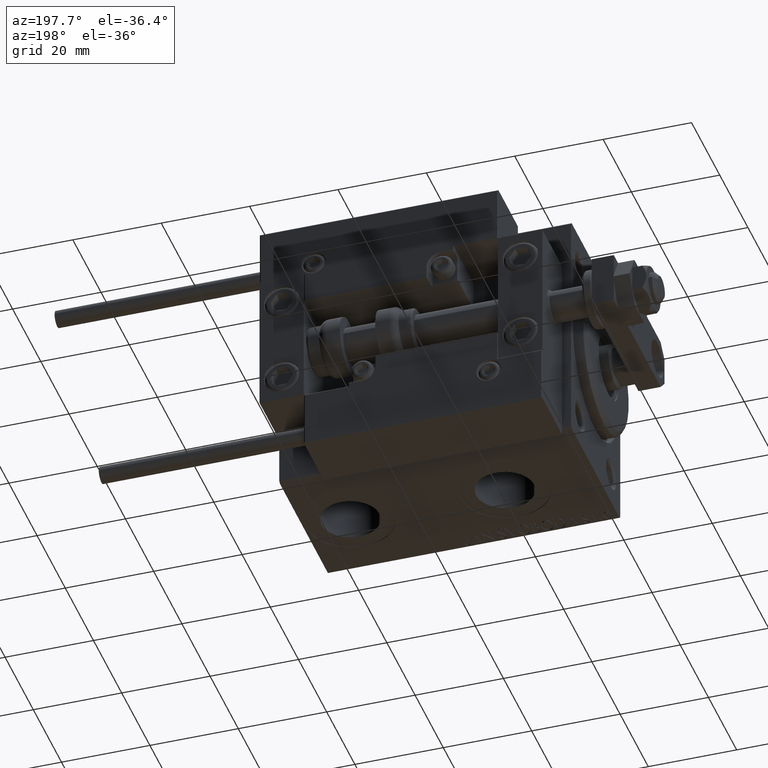
[diagram: clean part render]
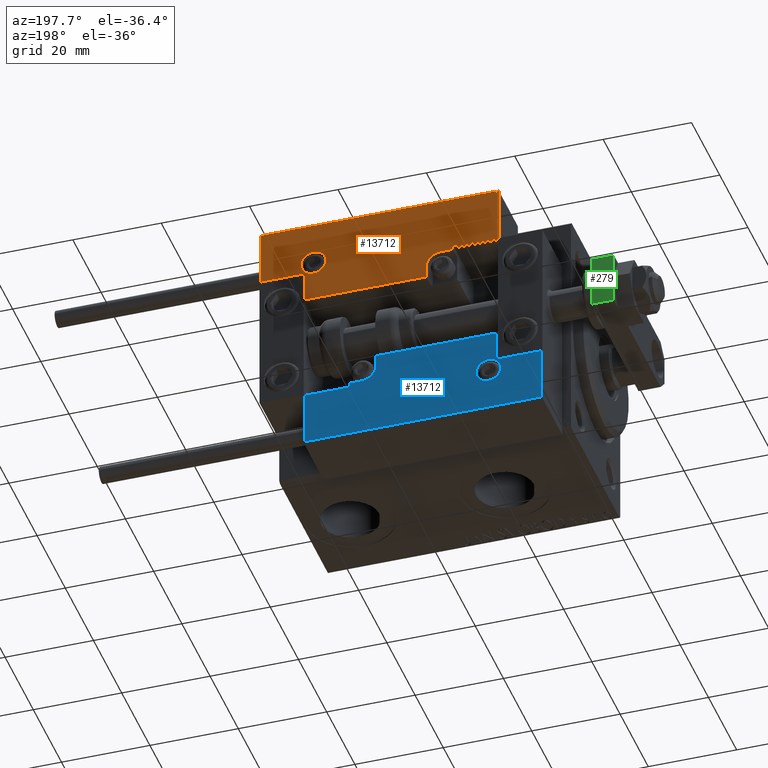
[diagram: same view with three faces highlighted in distinct colors, each labeled with its STEP entity id]
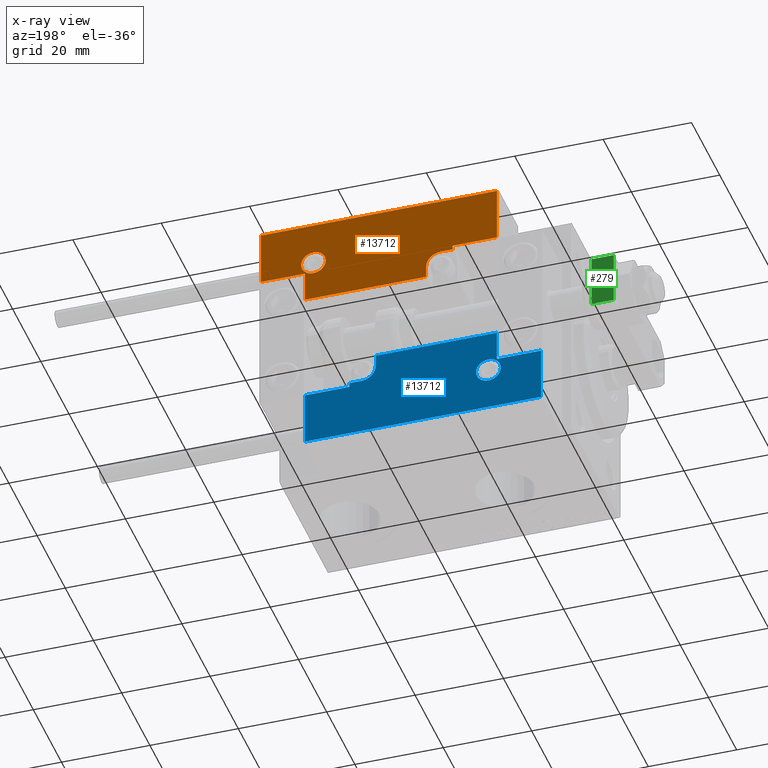
[diagram: x-ray of the same camera — body ghosted, the three highlighted faces saturated]
A machine part, auxiliary view with three faces highlighted in distinct colors.
The next image is the same camera in x-ray (body ghosted, the three faces saturated) — at least one of them is partly hidden behind the body in this view.
Their STEP definitions:

[orange] entity #13712 — the highlighted planar face has unit normal (-0, 1, -0).
#22 = LINE ( 'NONE', #547, #45809 ) ;
#547 = CARTESIAN_POINT ( 'NONE',  ( 16.69999999999999929, 7.000000000000009770, 14.00000000000000000 ) ) ;
#862 = DIRECTION ( 'NONE',  ( 0.000000000000000000, -1.000000000000000000, 0.000000000000000000 ) ) ;
#1404 = CARTESIAN_POINT ( 'NONE',  ( 13.99999999999999822, 3.000000000000002665, 14.00000000000000000 ) ) ;
#1955 = VERTEX_POINT ( 'NONE', #6194 ) ;
#2488 = CARTESIAN_POINT ( 'NONE',  ( 10.69999999999999929, 3.000000000000003109, 14.00000000000000000 ) ) ;
#2650 = EDGE_CURVE ( 'NONE', #49563, #13708, #47462, .T. ) ;
#2847 = EDGE_CURVE ( 'NONE', #11954, #24533, #2974, .T. ) ;
#2974 = CIRCLE ( 'NONE', #13187, 2.800000000000000266 ) ;
#3666 = CARTESIAN_POINT ( 'NONE',  ( 16.69999999999999929, 6.300000000000003375, 14.00000000000000000 ) ) ;
#4376 = ORIENTED_EDGE ( 'NONE', *, *, #14199, .T. ) ;
#4877 = DIRECTION ( 'NONE',  ( 1.000000000000000000, 0.000000000000000000, 0.000000000000000000 ) ) ;
#6194 = CARTESIAN_POINT ( 'NONE',  ( 16.69999999999999929, 7.300000000000009592, 14.00000000000000000 ) ) ;
#6582 = CARTESIAN_POINT ( 'NONE',  ( 10.69999999999999929, 3.000000000000003109, 14.00000000000000000 ) ) ;
#7133 = FACE_BOUND ( 'NONE', #41060, .T. ) ;
#7647 = DIRECTION ( 'NONE',  ( 1.000000000000000000, 0.000000000000000000, 0.000000000000000000 ) ) ;
#8162 = CARTESIAN_POINT ( 'NONE',  ( -26.69999999999993534, 19.70000000000002061, 14.00000000000000000 ) ) ;
#8483 = DIRECTION ( 'NONE',  ( 0.000000000000000000, -0.000000000000000000, -1.000000000000000000 ) ) ;
#10380 = CARTESIAN_POINT ( 'NONE',  ( -26.69999999999994600, 7.000000000000005329, 14.00000000000000000 ) ) ;
#10434 = VERTEX_POINT ( 'NONE', #44101 ) ;
#10633 = VECTOR ( 'NONE', #38465, 1000.000000000000000 ) ;
#10973 = CIRCLE ( 'NONE', #32155, 3.299999999999997158 ) ;
#11466 = DIRECTION ( 'NONE',  ( 1.000000000000000000, -0.000000000000000000, 0.000000000000000000 ) ) ;
#11628 = DIRECTION ( 'NONE',  ( -1.000000000000000000, 6.424901762877063495E-17, -0.000000000000000000 ) ) ;
#11700 = ORIENTED_EDGE ( 'NONE', *, *, #2650, .T. ) ;
#11727 = CIRCLE ( 'NONE', #23603, 2.800000000000000266 ) ;
#11936 = CARTESIAN_POINT ( 'NONE',  ( -16.69999999999999218, 7.300000000000003375, 14.00000000000000000 ) ) ;
#11954 = VERTEX_POINT ( 'NONE', #20620 ) ;
#12237 = DIRECTION ( 'NONE',  ( 9.912705577010318647E-16, 1.000000000000000000, 0.000000000000000000 ) ) ;
#12462 = CARTESIAN_POINT ( 'NONE',  ( -14.79999999999994920, 9.800000000000004263, 14.00000000000000000 ) ) ;
#12673 = EDGE_CURVE ( 'NONE', #24533, #11954, #11727, .T. ) ;
#13106 = DIRECTION ( 'NONE',  ( 0.000000000000000000, -0.000000000000000000, -1.000000000000000000 ) ) ;
#13119 = ORIENTED_EDGE ( 'NONE', *, *, #29435, .T. ) ;
#13173 = VECTOR ( 'NONE', #11466, 1000.000000000000000 ) ;
#13187 = AXIS2_PLACEMENT_3D ( 'NONE', #30360, #30630, #34099 ) ;
#13346 = LINE ( 'NONE', #29266, #49203 ) ;
#13708 = VERTEX_POINT ( 'NONE', #3666 ) ;
#13712 = ADVANCED_FACE ( 'NONE', ( #7133, #19346 ), #31552, .T. ) ;
#14199 = EDGE_CURVE ( 'NONE', #15102, #16950, #35418, .T. ) ;
#14789 = VERTEX_POINT ( 'NONE', #26477 ) ;
#15102 = VERTEX_POINT ( 'NONE', #39418 ) ;
#15374 = EDGE_CURVE ( 'NONE', #16950, #49563, #10973, .T. ) ;
#15875 = DIRECTION ( 'NONE',  ( -0.000000000000000000, 0.000000000000000000, 1.000000000000000000 ) ) ;
#16282 = CARTESIAN_POINT ( 'NONE',  ( 13.99999999999999822, 6.300000000000001599, 14.00000000000000000 ) ) ;
#16826 = VERTEX_POINT ( 'NONE', #11936 ) ;
#16950 = VERTEX_POINT ( 'NONE', #6582 ) ;
#19346 = FACE_OUTER_BOUND ( 'NONE', #20336, .T. ) ;
#19527 = VERTEX_POINT ( 'NONE', #34659 ) ;
#20336 = EDGE_LOOP ( 'NONE', ( #44208, #13119, #4376, #20767, #11700, #51398, #21435, #48749, #44885, #47358, #22649 ) ) ;
#20620 = CARTESIAN_POINT ( 'NONE',  ( -11.99999999999994849, 9.800000000000004263, 14.00000000000000000 ) ) ;
#20767 = ORIENTED_EDGE ( 'NONE', *, *, #15374, .T. ) ;
#20957 = EDGE_CURVE ( 'NONE', #16826, #49275, #13346, .T. ) ;
#21201 = VECTOR ( 'NONE', #11628, 1000.000000000000000 ) ;
#21435 = ORIENTED_EDGE ( 'NONE', *, *, #40772, .T. ) ;
#21695 = VECTOR ( 'NONE', #26578, 1000.000000000000000 ) ;
#22649 = ORIENTED_EDGE ( 'NONE', *, *, #48621, .T. ) ;
#23519 = CARTESIAN_POINT ( 'NONE',  ( -16.99999999999999289, 7.300000000000003375, 14.00000000000000000 ) ) ;
#23603 = AXIS2_PLACEMENT_3D ( 'NONE', #12462, #8483, #40874 ) ;
#23724 = DIRECTION ( 'NONE',  ( -0.000000000000000000, 1.000000000000000000, -0.000000000000000000 ) ) ;
#24533 = VERTEX_POINT ( 'NONE', #40020 ) ;
#24813 = LINE ( 'NONE', #49496, #25437 ) ;
#25437 = VECTOR ( 'NONE', #33568, 1000.000000000000000 ) ;
#25609 = CARTESIAN_POINT ( 'NONE',  ( -16.69999999999999218, 0.3000000000000032085, 14.00000000000000000 ) ) ;
#25846 = ORIENTED_EDGE ( 'NONE', *, *, #12673, .T. ) ;
#26313 = LINE ( 'NONE', #10380, #21695 ) ;
#26477 = CARTESIAN_POINT ( 'NONE',  ( 26.70000000000006324, 19.70000000000001705, 14.00000000000000000 ) ) ;
#26578 = DIRECTION ( 'NONE',  ( -8.006416042969869188E-16, -1.000000000000000000, 0.000000000000000000 ) ) ;
#27050 = VECTOR ( 'NONE', #23724, 1000.000000000000000 ) ;
#28909 = EDGE_CURVE ( 'NONE', #10434, #14789, #44043, .T. ) ;
#29266 = CARTESIAN_POINT ( 'NONE',  ( -16.69999999999999218, 3.252606517456513302E-15, 14.00000000000000000 ) ) ;
#29435 = EDGE_CURVE ( 'NONE', #49275, #15102, #31645, .T. ) ;
#30360 = CARTESIAN_POINT ( 'NONE',  ( -14.79999999999994920, 9.800000000000004263, 14.00000000000000000 ) ) ;
#30630 = DIRECTION ( 'NONE',  ( 0.000000000000000000, -0.000000000000000000, -1.000000000000000000 ) ) ;
#30758 = LINE ( 'NONE', #39512, #21201 ) ;
#31552 = PLANE ( 'NONE',  #38071 ) ;
#31645 = LINE ( 'NONE', #47827, #13173 ) ;
#31672 = EDGE_CURVE ( 'NONE', #36691, #19527, #26313, .T. ) ;
#31804 = CARTESIAN_POINT ( 'NONE',  ( 0.000000000000000000, 0.000000000000000000, 14.00000000000000000 ) ) ;
#32155 = AXIS2_PLACEMENT_3D ( 'NONE', #1404, #13106, #4877 ) ;
#33568 = DIRECTION ( 'NONE',  ( 1.000000000000000000, -1.734723475976796001E-16, 0.000000000000000000 ) ) ;
#34099 = DIRECTION ( 'NONE',  ( 1.000000000000000000, 0.000000000000000000, 0.000000000000000000 ) ) ;
#34217 = CARTESIAN_POINT ( 'NONE',  ( 17.00000000000000000, 6.300000000000003375, 14.00000000000000000 ) ) ;
#34659 = CARTESIAN_POINT ( 'NONE',  ( -26.69999999999994600, 7.300000000000005151, 14.00000000000000000 ) ) ;
#35418 = LINE ( 'NONE', #2488, #27050 ) ;
#36691 = VERTEX_POINT ( 'NONE', #8162 ) ;
#38071 = AXIS2_PLACEMENT_3D ( 'NONE', #31804, #15875, #7647 ) ;
#38465 = DIRECTION ( 'NONE',  ( 1.000000000000000000, 5.782411586589357639E-16, -0.000000000000000000 ) ) ;
#39027 = DIRECTION ( 'NONE',  ( 0.000000000000000000, 1.000000000000000000, -0.000000000000000000 ) ) ;
#39418 = CARTESIAN_POINT ( 'NONE',  ( 10.69999999999999929, 0.3000000000000032085, 14.00000000000000000 ) ) ;
#39512 = CARTESIAN_POINT ( 'NONE',  ( -26.99999999999993605, 19.70000000000002061, 14.00000000000000000 ) ) ;
#40020 = CARTESIAN_POINT ( 'NONE',  ( -17.59999999999994813, 9.800000000000004263, 14.00000000000000000 ) ) ;
#40772 = EDGE_CURVE ( 'NONE', #1955, #10434, #24813, .T. ) ;
#40874 = DIRECTION ( 'NONE',  ( 1.000000000000000000, 0.000000000000000000, 0.000000000000000000 ) ) ;
#40895 = VECTOR ( 'NONE', #47679, 1000.000000000000000 ) ;
#41060 = EDGE_LOOP ( 'NONE', ( #42598, #25846 ) ) ;
#41130 = EDGE_CURVE ( 'NONE', #14789, #36691, #30758, .T. ) ;
#42598 = ORIENTED_EDGE ( 'NONE', *, *, #2847, .T. ) ;
#44043 = LINE ( 'NONE', #51227, #47990 ) ;
#44101 = CARTESIAN_POINT ( 'NONE',  ( 26.70000000000006324, 7.300000000000007816, 14.00000000000000000 ) ) ;
#44208 = ORIENTED_EDGE ( 'NONE', *, *, #20957, .T. ) ;
#44224 = LINE ( 'NONE', #23519, #40895 ) ;
#44885 = ORIENTED_EDGE ( 'NONE', *, *, #41130, .T. ) ;
#45809 = VECTOR ( 'NONE', #12237, 1000.000000000000000 ) ;
#47358 = ORIENTED_EDGE ( 'NONE', *, *, #31672, .T. ) ;
#47462 = LINE ( 'NONE', #34217, #10633 ) ;
#47679 = DIRECTION ( 'NONE',  ( 1.000000000000000000, -1.734723475976815230E-16, 0.000000000000000000 ) ) ;
#47827 = CARTESIAN_POINT ( 'NONE',  ( 11.00000000000000000, 0.3000000000000032085, 14.00000000000000000 ) ) ;
#47990 = VECTOR ( 'NONE', #39027, 1000.000000000000000 ) ;
#48621 = EDGE_CURVE ( 'NONE', #19527, #16826, #44224, .T. ) ;
#48749 = ORIENTED_EDGE ( 'NONE', *, *, #28909, .T. ) ;
#49203 = VECTOR ( 'NONE', #862, 1000.000000000000000 ) ;
#49275 = VERTEX_POINT ( 'NONE', #25609 ) ;
#49496 = CARTESIAN_POINT ( 'NONE',  ( 27.00000000000006395, 7.300000000000007816, 14.00000000000000000 ) ) ;
#49563 = VERTEX_POINT ( 'NONE', #16282 ) ;
#51038 = EDGE_CURVE ( 'NONE', #13708, #1955, #22, .T. ) ;
#51227 = CARTESIAN_POINT ( 'NONE',  ( 26.70000000000006324, 20.00000000000001776, 14.00000000000000000 ) ) ;
#51398 = ORIENTED_EDGE ( 'NONE', *, *, #51038, .T. ) ;

[blue] entity #13712 — the highlighted planar face has unit normal (-0, 1, -0).
#22 = LINE ( 'NONE', #547, #45809 ) ;
#547 = CARTESIAN_POINT ( 'NONE',  ( 16.69999999999999929, 7.000000000000009770, 14.00000000000000000 ) ) ;
#862 = DIRECTION ( 'NONE',  ( 0.000000000000000000, -1.000000000000000000, 0.000000000000000000 ) ) ;
#1404 = CARTESIAN_POINT ( 'NONE',  ( 13.99999999999999822, 3.000000000000002665, 14.00000000000000000 ) ) ;
#1955 = VERTEX_POINT ( 'NONE', #6194 ) ;
#2488 = CARTESIAN_POINT ( 'NONE',  ( 10.69999999999999929, 3.000000000000003109, 14.00000000000000000 ) ) ;
#2650 = EDGE_CURVE ( 'NONE', #49563, #13708, #47462, .T. ) ;
#2847 = EDGE_CURVE ( 'NONE', #11954, #24533, #2974, .T. ) ;
#2974 = CIRCLE ( 'NONE', #13187, 2.800000000000000266 ) ;
#3666 = CARTESIAN_POINT ( 'NONE',  ( 16.69999999999999929, 6.300000000000003375, 14.00000000000000000 ) ) ;
#4376 = ORIENTED_EDGE ( 'NONE', *, *, #14199, .T. ) ;
#4877 = DIRECTION ( 'NONE',  ( 1.000000000000000000, 0.000000000000000000, 0.000000000000000000 ) ) ;
#6194 = CARTESIAN_POINT ( 'NONE',  ( 16.69999999999999929, 7.300000000000009592, 14.00000000000000000 ) ) ;
#6582 = CARTESIAN_POINT ( 'NONE',  ( 10.69999999999999929, 3.000000000000003109, 14.00000000000000000 ) ) ;
#7133 = FACE_BOUND ( 'NONE', #41060, .T. ) ;
#7647 = DIRECTION ( 'NONE',  ( 1.000000000000000000, 0.000000000000000000, 0.000000000000000000 ) ) ;
#8162 = CARTESIAN_POINT ( 'NONE',  ( -26.69999999999993534, 19.70000000000002061, 14.00000000000000000 ) ) ;
#8483 = DIRECTION ( 'NONE',  ( 0.000000000000000000, -0.000000000000000000, -1.000000000000000000 ) ) ;
#10380 = CARTESIAN_POINT ( 'NONE',  ( -26.69999999999994600, 7.000000000000005329, 14.00000000000000000 ) ) ;
#10434 = VERTEX_POINT ( 'NONE', #44101 ) ;
#10633 = VECTOR ( 'NONE', #38465, 1000.000000000000000 ) ;
#10973 = CIRCLE ( 'NONE', #32155, 3.299999999999997158 ) ;
#11466 = DIRECTION ( 'NONE',  ( 1.000000000000000000, -0.000000000000000000, 0.000000000000000000 ) ) ;
#11628 = DIRECTION ( 'NONE',  ( -1.000000000000000000, 6.424901762877063495E-17, -0.000000000000000000 ) ) ;
#11700 = ORIENTED_EDGE ( 'NONE', *, *, #2650, .T. ) ;
#11727 = CIRCLE ( 'NONE', #23603, 2.800000000000000266 ) ;
#11936 = CARTESIAN_POINT ( 'NONE',  ( -16.69999999999999218, 7.300000000000003375, 14.00000000000000000 ) ) ;
#11954 = VERTEX_POINT ( 'NONE', #20620 ) ;
#12237 = DIRECTION ( 'NONE',  ( 9.912705577010318647E-16, 1.000000000000000000, 0.000000000000000000 ) ) ;
#12462 = CARTESIAN_POINT ( 'NONE',  ( -14.79999999999994920, 9.800000000000004263, 14.00000000000000000 ) ) ;
#12673 = EDGE_CURVE ( 'NONE', #24533, #11954, #11727, .T. ) ;
#13106 = DIRECTION ( 'NONE',  ( 0.000000000000000000, -0.000000000000000000, -1.000000000000000000 ) ) ;
#13119 = ORIENTED_EDGE ( 'NONE', *, *, #29435, .T. ) ;
#13173 = VECTOR ( 'NONE', #11466, 1000.000000000000000 ) ;
#13187 = AXIS2_PLACEMENT_3D ( 'NONE', #30360, #30630, #34099 ) ;
#13346 = LINE ( 'NONE', #29266, #49203 ) ;
#13708 = VERTEX_POINT ( 'NONE', #3666 ) ;
#13712 = ADVANCED_FACE ( 'NONE', ( #7133, #19346 ), #31552, .T. ) ;
#14199 = EDGE_CURVE ( 'NONE', #15102, #16950, #35418, .T. ) ;
#14789 = VERTEX_POINT ( 'NONE', #26477 ) ;
#15102 = VERTEX_POINT ( 'NONE', #39418 ) ;
#15374 = EDGE_CURVE ( 'NONE', #16950, #49563, #10973, .T. ) ;
#15875 = DIRECTION ( 'NONE',  ( -0.000000000000000000, 0.000000000000000000, 1.000000000000000000 ) ) ;
#16282 = CARTESIAN_POINT ( 'NONE',  ( 13.99999999999999822, 6.300000000000001599, 14.00000000000000000 ) ) ;
#16826 = VERTEX_POINT ( 'NONE', #11936 ) ;
#16950 = VERTEX_POINT ( 'NONE', #6582 ) ;
#19346 = FACE_OUTER_BOUND ( 'NONE', #20336, .T. ) ;
#19527 = VERTEX_POINT ( 'NONE', #34659 ) ;
#20336 = EDGE_LOOP ( 'NONE', ( #44208, #13119, #4376, #20767, #11700, #51398, #21435, #48749, #44885, #47358, #22649 ) ) ;
#20620 = CARTESIAN_POINT ( 'NONE',  ( -11.99999999999994849, 9.800000000000004263, 14.00000000000000000 ) ) ;
#20767 = ORIENTED_EDGE ( 'NONE', *, *, #15374, .T. ) ;
#20957 = EDGE_CURVE ( 'NONE', #16826, #49275, #13346, .T. ) ;
#21201 = VECTOR ( 'NONE', #11628, 1000.000000000000000 ) ;
#21435 = ORIENTED_EDGE ( 'NONE', *, *, #40772, .T. ) ;
#21695 = VECTOR ( 'NONE', #26578, 1000.000000000000000 ) ;
#22649 = ORIENTED_EDGE ( 'NONE', *, *, #48621, .T. ) ;
#23519 = CARTESIAN_POINT ( 'NONE',  ( -16.99999999999999289, 7.300000000000003375, 14.00000000000000000 ) ) ;
#23603 = AXIS2_PLACEMENT_3D ( 'NONE', #12462, #8483, #40874 ) ;
#23724 = DIRECTION ( 'NONE',  ( -0.000000000000000000, 1.000000000000000000, -0.000000000000000000 ) ) ;
#24533 = VERTEX_POINT ( 'NONE', #40020 ) ;
#24813 = LINE ( 'NONE', #49496, #25437 ) ;
#25437 = VECTOR ( 'NONE', #33568, 1000.000000000000000 ) ;
#25609 = CARTESIAN_POINT ( 'NONE',  ( -16.69999999999999218, 0.3000000000000032085, 14.00000000000000000 ) ) ;
#25846 = ORIENTED_EDGE ( 'NONE', *, *, #12673, .T. ) ;
#26313 = LINE ( 'NONE', #10380, #21695 ) ;
#26477 = CARTESIAN_POINT ( 'NONE',  ( 26.70000000000006324, 19.70000000000001705, 14.00000000000000000 ) ) ;
#26578 = DIRECTION ( 'NONE',  ( -8.006416042969869188E-16, -1.000000000000000000, 0.000000000000000000 ) ) ;
#27050 = VECTOR ( 'NONE', #23724, 1000.000000000000000 ) ;
#28909 = EDGE_CURVE ( 'NONE', #10434, #14789, #44043, .T. ) ;
#29266 = CARTESIAN_POINT ( 'NONE',  ( -16.69999999999999218, 3.252606517456513302E-15, 14.00000000000000000 ) ) ;
#29435 = EDGE_CURVE ( 'NONE', #49275, #15102, #31645, .T. ) ;
#30360 = CARTESIAN_POINT ( 'NONE',  ( -14.79999999999994920, 9.800000000000004263, 14.00000000000000000 ) ) ;
#30630 = DIRECTION ( 'NONE',  ( 0.000000000000000000, -0.000000000000000000, -1.000000000000000000 ) ) ;
#30758 = LINE ( 'NONE', #39512, #21201 ) ;
#31552 = PLANE ( 'NONE',  #38071 ) ;
#31645 = LINE ( 'NONE', #47827, #13173 ) ;
#31672 = EDGE_CURVE ( 'NONE', #36691, #19527, #26313, .T. ) ;
#31804 = CARTESIAN_POINT ( 'NONE',  ( 0.000000000000000000, 0.000000000000000000, 14.00000000000000000 ) ) ;
#32155 = AXIS2_PLACEMENT_3D ( 'NONE', #1404, #13106, #4877 ) ;
#33568 = DIRECTION ( 'NONE',  ( 1.000000000000000000, -1.734723475976796001E-16, 0.000000000000000000 ) ) ;
#34099 = DIRECTION ( 'NONE',  ( 1.000000000000000000, 0.000000000000000000, 0.000000000000000000 ) ) ;
#34217 = CARTESIAN_POINT ( 'NONE',  ( 17.00000000000000000, 6.300000000000003375, 14.00000000000000000 ) ) ;
#34659 = CARTESIAN_POINT ( 'NONE',  ( -26.69999999999994600, 7.300000000000005151, 14.00000000000000000 ) ) ;
#35418 = LINE ( 'NONE', #2488, #27050 ) ;
#36691 = VERTEX_POINT ( 'NONE', #8162 ) ;
#38071 = AXIS2_PLACEMENT_3D ( 'NONE', #31804, #15875, #7647 ) ;
#38465 = DIRECTION ( 'NONE',  ( 1.000000000000000000, 5.782411586589357639E-16, -0.000000000000000000 ) ) ;
#39027 = DIRECTION ( 'NONE',  ( 0.000000000000000000, 1.000000000000000000, -0.000000000000000000 ) ) ;
#39418 = CARTESIAN_POINT ( 'NONE',  ( 10.69999999999999929, 0.3000000000000032085, 14.00000000000000000 ) ) ;
#39512 = CARTESIAN_POINT ( 'NONE',  ( -26.99999999999993605, 19.70000000000002061, 14.00000000000000000 ) ) ;
#40020 = CARTESIAN_POINT ( 'NONE',  ( -17.59999999999994813, 9.800000000000004263, 14.00000000000000000 ) ) ;
#40772 = EDGE_CURVE ( 'NONE', #1955, #10434, #24813, .T. ) ;
#40874 = DIRECTION ( 'NONE',  ( 1.000000000000000000, 0.000000000000000000, 0.000000000000000000 ) ) ;
#40895 = VECTOR ( 'NONE', #47679, 1000.000000000000000 ) ;
#41060 = EDGE_LOOP ( 'NONE', ( #42598, #25846 ) ) ;
#41130 = EDGE_CURVE ( 'NONE', #14789, #36691, #30758, .T. ) ;
#42598 = ORIENTED_EDGE ( 'NONE', *, *, #2847, .T. ) ;
#44043 = LINE ( 'NONE', #51227, #47990 ) ;
#44101 = CARTESIAN_POINT ( 'NONE',  ( 26.70000000000006324, 7.300000000000007816, 14.00000000000000000 ) ) ;
#44208 = ORIENTED_EDGE ( 'NONE', *, *, #20957, .T. ) ;
#44224 = LINE ( 'NONE', #23519, #40895 ) ;
#44885 = ORIENTED_EDGE ( 'NONE', *, *, #41130, .T. ) ;
#45809 = VECTOR ( 'NONE', #12237, 1000.000000000000000 ) ;
#47358 = ORIENTED_EDGE ( 'NONE', *, *, #31672, .T. ) ;
#47462 = LINE ( 'NONE', #34217, #10633 ) ;
#47679 = DIRECTION ( 'NONE',  ( 1.000000000000000000, -1.734723475976815230E-16, 0.000000000000000000 ) ) ;
#47827 = CARTESIAN_POINT ( 'NONE',  ( 11.00000000000000000, 0.3000000000000032085, 14.00000000000000000 ) ) ;
#47990 = VECTOR ( 'NONE', #39027, 1000.000000000000000 ) ;
#48621 = EDGE_CURVE ( 'NONE', #19527, #16826, #44224, .T. ) ;
#48749 = ORIENTED_EDGE ( 'NONE', *, *, #28909, .T. ) ;
#49203 = VECTOR ( 'NONE', #862, 1000.000000000000000 ) ;
#49275 = VERTEX_POINT ( 'NONE', #25609 ) ;
#49496 = CARTESIAN_POINT ( 'NONE',  ( 27.00000000000006395, 7.300000000000007816, 14.00000000000000000 ) ) ;
#49563 = VERTEX_POINT ( 'NONE', #16282 ) ;
#51038 = EDGE_CURVE ( 'NONE', #13708, #1955, #22, .T. ) ;
#51227 = CARTESIAN_POINT ( 'NONE',  ( 26.70000000000006324, 20.00000000000001776, 14.00000000000000000 ) ) ;
#51398 = ORIENTED_EDGE ( 'NONE', *, *, #51038, .T. ) ;

[green] entity #279 — the highlighted planar face has unit normal (0, -1, 0).
#279 = ADVANCED_FACE ( 'NONE', ( #48669 ), #869, .F. ) ;
#869 = PLANE ( 'NONE',  #9691 ) ;
#3692 = VERTEX_POINT ( 'NONE', #7838 ) ;
#5714 = EDGE_CURVE ( 'NONE', #30294, #8611, #7266, .T. ) ;
#7266 = LINE ( 'NONE', #31685, #23455 ) ;
#7838 = CARTESIAN_POINT ( 'NONE',  ( 6.000000000000008882, 36.00000000000000000, 0.000000000000000000 ) ) ;
#8006 = EDGE_CURVE ( 'NONE', #38498, #30294, #20932, .T. ) ;
#8611 = VERTEX_POINT ( 'NONE', #46183 ) ;
#8716 = DIRECTION ( 'NONE',  ( -1.000000000000000000, 0.000000000000000000, 0.000000000000000000 ) ) ;
#8966 = CARTESIAN_POINT ( 'NONE',  ( 6.000000000000008882, 36.00000000000000000, 5.000000000000000000 ) ) ;
#9691 = AXIS2_PLACEMENT_3D ( 'NONE', #16541, #16293, #12299 ) ;
#11163 = CARTESIAN_POINT ( 'NONE',  ( 6.000000000000008882, 36.00000000000000000, 5.000000000000000000 ) ) ;
#12299 = DIRECTION ( 'NONE',  ( 0.000000000000000000, -0.000000000000000000, -1.000000000000000000 ) ) ;
#14967 = DIRECTION ( 'NONE',  ( -0.000000000000000000, -0.000000000000000000, -1.000000000000000000 ) ) ;
#16149 = LINE ( 'NONE', #44293, #29308 ) ;
#16293 = DIRECTION ( 'NONE',  ( 0.000000000000000000, -1.000000000000000000, 0.000000000000000000 ) ) ;
#16541 = CARTESIAN_POINT ( 'NONE',  ( 6.000000000000008882, 36.00000000000000000, 5.000000000000000000 ) ) ;
#16570 = EDGE_CURVE ( 'NONE', #38498, #3692, #34013, .T. ) ;
#17264 = ORIENTED_EDGE ( 'NONE', *, *, #5714, .F. ) ;
#17290 = CARTESIAN_POINT ( 'NONE',  ( 6.000000000000008882, 36.00000000000000000, 5.000000000000000000 ) ) ;
#20932 = LINE ( 'NONE', #8966, #31930 ) ;
#20986 = ORIENTED_EDGE ( 'NONE', *, *, #27074, .T. ) ;
#23455 = VECTOR ( 'NONE', #14967, 1000.000000000000000 ) ;
#23746 = VECTOR ( 'NONE', #50184, 1000.000000000000000 ) ;
#27074 = EDGE_CURVE ( 'NONE', #3692, #8611, #16149, .T. ) ;
#29308 = VECTOR ( 'NONE', #52001, 1000.000000000000000 ) ;
#30294 = VERTEX_POINT ( 'NONE', #39107 ) ;
#31685 = CARTESIAN_POINT ( 'NONE',  ( -5.999999999999991118, 36.00000000000000000, 5.000000000000000000 ) ) ;
#31930 = VECTOR ( 'NONE', #8716, 1000.000000000000000 ) ;
#34013 = LINE ( 'NONE', #17290, #23746 ) ;
#38498 = VERTEX_POINT ( 'NONE', #11163 ) ;
#39107 = CARTESIAN_POINT ( 'NONE',  ( -5.999999999999991118, 36.00000000000000000, 5.000000000000000000 ) ) ;
#42977 = EDGE_LOOP ( 'NONE', ( #20986, #17264, #44505, #47332 ) ) ;
#44293 = CARTESIAN_POINT ( 'NONE',  ( 6.000000000000008882, 36.00000000000000000, 0.000000000000000000 ) ) ;
#44505 = ORIENTED_EDGE ( 'NONE', *, *, #8006, .F. ) ;
#46183 = CARTESIAN_POINT ( 'NONE',  ( -5.999999999999991118, 36.00000000000000000, 0.000000000000000000 ) ) ;
#47332 = ORIENTED_EDGE ( 'NONE', *, *, #16570, .T. ) ;
#48669 = FACE_OUTER_BOUND ( 'NONE', #42977, .T. ) ;
#50184 = DIRECTION ( 'NONE',  ( -0.000000000000000000, -0.000000000000000000, -1.000000000000000000 ) ) ;
#52001 = DIRECTION ( 'NONE',  ( -1.000000000000000000, 0.000000000000000000, 0.000000000000000000 ) ) ;